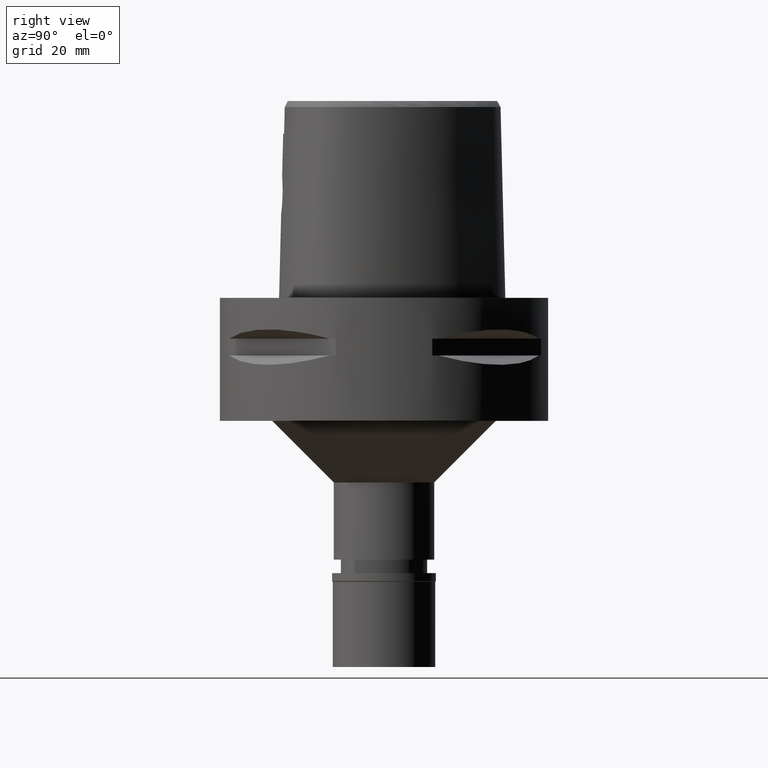
[diagram: clean part render]
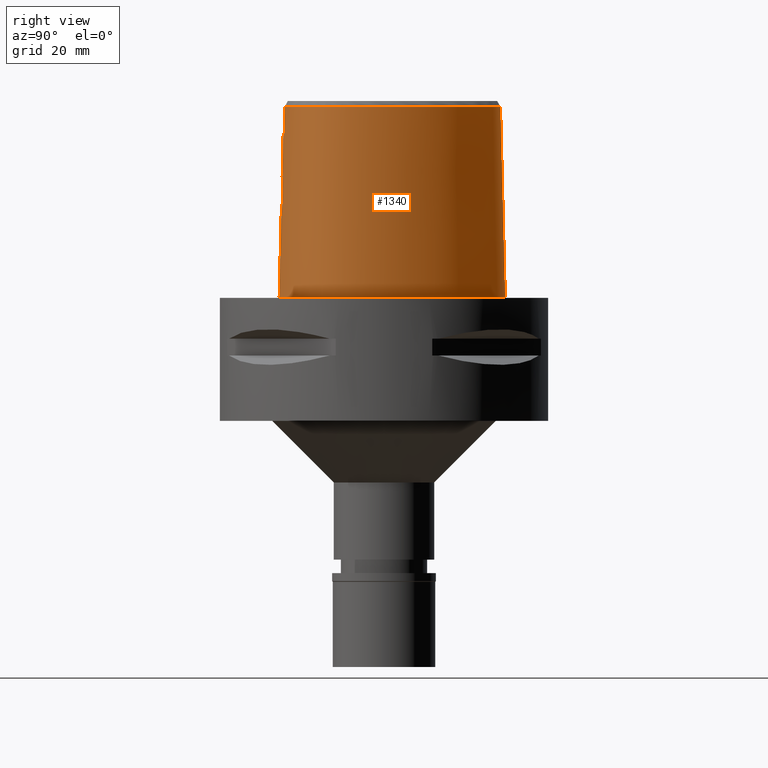
[diagram: same view with one face highlighted and labeled with its STEP entity id]
A machine part, right view. The second image highlights one B-rep face of the part: STEP entity #1340.
In plain terms, the highlighted face is a freeform B-spline surface patch.
Its self-contained STEP definition (entity closure, byte-faithful):
#16 = FACE_OUTER_BOUND ( 'NONE', #2565, .T. ) ;
#29 = CARTESIAN_POINT ( 'NONE',  ( -4.851582298131758220E-09, -24.66214466420117191, 36.51666702991057889 ) ) ;
#63 = CARTESIAN_POINT ( 'NONE',  ( 6.114741924158000330, 27.99897533430999985, 15.19676984310000023 ) ) ;
#77 = CARTESIAN_POINT ( 'NONE',  ( 4.148743480276000060E-11, 29.57499999998999840, 1.087648489790999820E-13 ) ) ;
#89 = CARTESIAN_POINT ( 'NONE',  ( -0.8826521035651000435, 29.16640542087000298, 15.19676984310000023 ) ) ;
#95 = CARTESIAN_POINT ( 'NONE',  ( 17.98126123895999839, -20.40884543399999984, 47.45113848967000081 ) ) ;
#114 = CARTESIAN_POINT ( 'NONE',  ( -0.8299363417081999650, 28.36186523049999764, 47.45113848967000081 ) ) ;
#120 = CARTESIAN_POINT ( 'NONE',  ( 27.87808443107999778, -5.337383714066000095, -0.9304144801895999350 ) ) ;
#127 = CARTESIAN_POINT ( 'NONE',  ( 24.77458491199806545, -16.12173826438012370, 1.136801594915984315E-06 ) ) ;
#146 = CARTESIAN_POINT ( 'NONE',  ( 25.95531695801999916, -11.08496013584000117, 47.45113848967000081 ) ) ;
#162 = CARTESIAN_POINT ( 'NONE',  ( 17.77103258633999872, 19.53703864451999905, -0.9304144801895999350 ) ) ;
#164 = CARTESIAN_POINT ( 'NONE',  ( 23.53784508589602353, -15.81022840325140066, 46.52069747213678141 ) ) ;
#169 = CARTESIAN_POINT ( 'NONE',  ( 26.00056140855999942, -13.24168030387999906, 15.19676984310000023 ) ) ;
#188 = CARTESIAN_POINT ( 'NONE',  ( 25.65830880171000317, -14.81383149364000040, -0.9304144801895999350 ) ) ;
#208 = CARTESIAN_POINT ( 'NONE',  ( 3.606429171763808395, -24.88406245827871999, 22.22480142265830594 ) ) ;
#231 = CARTESIAN_POINT ( 'NONE',  ( 3.252660951005724055, -24.76001264346002984, 28.18163816682579892 ) ) ;
#234 = CARTESIAN_POINT ( 'NONE',  ( 1.732112786591579967, -25.02412118468006952, 20.79259001707706034 ) ) ;
#256 = CARTESIAN_POINT ( 'NONE',  ( 1.672780685871034567, -25.02682213713908510, 20.76857498625487963 ) ) ;
#277 = CARTESIAN_POINT ( 'NONE',  ( 4.141553595727710757, -24.81790787904299123, 23.11546483665215845 ) ) ;
#283 = B_SPLINE_CURVE_WITH_KNOTS ( 'NONE', 3,
 ( #3488, #29, #2669, #3088 ),
 .UNSPECIFIED., .F., .F.,
 ( 4, 4 ),
 ( 0.0000000000000000000, 1.000000000000000000 ),
 .UNSPECIFIED. ) ;
#302 = CARTESIAN_POINT ( 'NONE',  ( 0.5741109003794259147, -25.06046598330699027, 20.47661985235022541 ) ) ;
#317 = CARTESIAN_POINT ( 'NONE',  ( 1.779627886570329887, -24.81238721778815659, 29.18772178098384273 ) ) ;
#339 = CARTESIAN_POINT ( 'NONE',  ( 4.549979298456326759, -24.73407938846012755, 24.96161245962010611 ) ) ;
#353 = ORIENTED_EDGE ( 'NONE', *, *, #1861, .T. ) ;
#402 = EDGE_CURVE ( 'NONE', #633, #1144, #3542, .T. ) ;
#413 = CARTESIAN_POINT ( 'NONE',  ( -0.8532294277657999082, -25.59082453100999999, -0.9304144801895999350 ) ) ;
#432 = CARTESIAN_POINT ( 'NONE',  ( 12.70057963536000045, 23.45048169686999984, 31.32395416638000185 ) ) ;
#461 = CARTESIAN_POINT ( 'NONE',  ( -0.5537150989762000819, 28.37988172796000086, 47.45113848967000081 ) ) ;
#466 = LINE ( 'NONE', #4011, #754 ) ;
#470 = CARTESIAN_POINT ( 'NONE',  ( 27.30517726736999862, -8.703986977869002217, 15.19676984310000023 ) ) ;
#477 = CARTESIAN_POINT ( 'NONE',  ( 6.262496933739964078, 28.35083005180685944, 1.136801594915984315E-06 ) ) ;
#487 = CARTESIAN_POINT ( 'NONE',  ( -0.9090099844935999318, 29.56867551604999989, -0.9304144801895999350 ) ) ;
#493 = CARTESIAN_POINT ( 'NONE',  ( 22.86810881857999789, -17.21714036287000127, 31.32395416638000185 ) ) ;
#520 = CARTESIAN_POINT ( 'NONE',  ( 27.16099298841000120, -1.823107492092000070, 15.19676984310000023 ) ) ;
#540 = CARTESIAN_POINT ( 'NONE',  ( 5.801139431382999589, 27.25218159234999860, 47.45113848967000081 ) ) ;
#542 = CARTESIAN_POINT ( 'NONE',  ( 24.33934953590221895, -14.68006085516544346, 46.52069803563268380 ) ) ;
#548 = CARTESIAN_POINT ( 'NONE',  ( 25.26074793472000124, -12.91722051518000036, 47.45113848967000081 ) ) ;
#574 = CARTESIAN_POINT ( 'NONE',  ( 11.64093423969000085, -23.76831843667000044, 15.19676984310000023 ) ) ;
#587 = CARTESIAN_POINT ( 'NONE',  ( 4.437987378315741971, -24.71842636459946974, 26.01433587875823150 ) ) ;
#590 = CARTESIAN_POINT ( 'NONE',  ( 1.717599865389070501, -25.02478947459730207, 20.78664336873108809 ) ) ;
#592 = EDGE_CURVE ( 'NONE', #2597, #1027, #466, .T. ) ;
#611 = CARTESIAN_POINT ( 'NONE',  ( 2.284825071839918120, -24.79755434855746188, 28.93755567619669833 ) ) ;
#633 = VERTEX_POINT ( 'NONE', #1723 ) ;
#638 = CARTESIAN_POINT ( 'NONE',  ( 1.986969619769309636, -24.80670454267275815, 29.09445024139903779 ) ) ;
#711 = CARTESIAN_POINT ( 'NONE',  ( 4.325577296999666643, -24.79069917426005887, 23.55238152010286257 ) ) ;
#754 = VECTOR ( 'NONE', #2459, 1000.000000000000000 ) ;
#805 = EDGE_CURVE ( 'NONE', #4263, #3664, #3974, .T. ) ;
#854 = CARTESIAN_POINT ( 'NONE',  ( 2.373865160391999574, -25.21827242840999972, 15.19676984310000023 ) ) ;
#860 = CARTESIAN_POINT ( 'NONE',  ( 27.53737509044531961, -1.765625004300504841, 1.136801594915984315E-06 ) ) ;
#877 = CARTESIAN_POINT ( 'NONE',  ( -0.5711750994366999734, 28.78275050240999988, 31.32395416638000185 ) ) ;
#885 = CARTESIAN_POINT ( 'NONE',  ( -0.8391799841011999828, -24.78463148750999778, 31.32395416638000185 ) ) ;
#909 = CARTESIAN_POINT ( 'NONE',  ( 26.50159628388000144, -8.602222731918999443, 47.45113848967000081 ) ) ;
#928 = CARTESIAN_POINT ( 'NONE',  ( 20.76159157987651938, 13.99289103072043972, 46.52070817855894802 ) ) ;
#932 = CARTESIAN_POINT ( 'NONE',  ( 15.01246784618999897, -22.23414198428000077, 31.32395416638000185 ) ) ;
#939 = CARTESIAN_POINT ( 'NONE',  ( 22.33885463296345364, 12.89734373572938075, 1.136801594915984315E-06 ) ) ;
#957 = CARTESIAN_POINT ( 'NONE',  ( 26.90338677561999958, -8.653104854893999942, 31.32395416638000185 ) ) ;
#980 = CARTESIAN_POINT ( 'NONE',  ( 3.317903692992027587, -24.91347842919924460, 21.88291014845663796 ) ) ;
#982 = CARTESIAN_POINT ( 'NONE',  ( 26.01411826738999977, 1.699187959068999998, 31.32395416638000185 ) ) ;
#997 = CARTESIAN_POINT ( 'NONE',  ( 2.087632527504702740, -24.80370565429717544, 29.04349576580940351 ) ) ;
#1022 = CARTESIAN_POINT ( 'NONE',  ( 26.56868348264749358, -7.988862950300611665, 46.52070085311219572 ) ) ;
#1027 = VERTEX_POINT ( 'NONE', #77 ) ;
#1050 = CARTESIAN_POINT ( 'NONE',  ( 3.937353243848378259, -24.84519667286562949, 22.71482954510200969 ) ) ;
#1095 = CARTESIAN_POINT ( 'NONE',  ( 4.537017841947839081, -24.74324082396890390, 24.64916680772596536 ) ) ;
#1108 = CARTESIAN_POINT ( 'NONE',  ( 4.402195190950401127, -24.71810392633526732, 26.16020714300089267 ) ) ;
#1144 = VERTEX_POINT ( 'NONE', #2382 ) ;
#1200 = CARTESIAN_POINT ( 'NONE',  ( -0.8562942226367000753, 28.76413532568000164, 31.32395416638000185 ) ) ;
#1215 = CARTESIAN_POINT ( 'NONE',  ( 23.43253026700000774, -17.76420408171494003, 1.136801594915984315E-06 ) ) ;
#1227 = CARTESIAN_POINT ( 'NONE',  ( 0.7484115207777000123, 29.63215901925000395, -0.9304144801895999350 ) ) ;
#1232 = CARTESIAN_POINT ( 'NONE',  ( 22.57751558706999973, -16.93548378452999970, 47.45113848967000081 ) ) ;
#1240 = CARTESIAN_POINT ( 'NONE',  ( 27.85475986894308420, -5.337968750714637167, 1.136801594915984315E-06 ) ) ;
#1245 = VERTEX_POINT ( 'NONE', #4318 ) ;
#1266 = CARTESIAN_POINT ( 'NONE',  ( 2.354169166424999737, -24.81494119805000054, 31.32395416638000185 ) ) ;
#1287 = CARTESIAN_POINT ( 'NONE',  ( 8.683908161026000272, 25.77663442005000149, 47.45113848967000081 ) ) ;
#1295 = CARTESIAN_POINT ( 'NONE',  ( 26.73375370593999989, -11.30662581556999946, 15.19676984310000023 ) ) ;
#1310 = CARTESIAN_POINT ( 'NONE',  ( 9.316733117310999290, 26.81182150647000029, -0.9304144801895999350 ) ) ;
#1312 = CARTESIAN_POINT ( 'NONE',  ( 25.61240997289991483, -12.23358473966909266, 46.52069916262448857 ) ) ;
#1316 = CARTESIAN_POINT ( 'NONE',  ( 24.79336081455999974, -16.13554022456000325, -0.9304144801895999350 ) ) ;
#1323 = CARTESIAN_POINT ( 'NONE',  ( 4.148743480276000060E-11, 29.57499999998999840, 1.087648489790999820E-13 ) ) ;
#1335 = CARTESIAN_POINT ( 'NONE',  ( 17.84219066873810888, -20.48406917474678579, 46.52069465465724818 ) ) ;
#1340 = ADVANCED_FACE ( 'NONE', ( #16 ), #1942, .T. ) ;
#1341 = CARTESIAN_POINT ( 'NONE',  ( 23.15870205008999960, -17.49879694120999929, 15.19676984310000023 ) ) ;
#1361 = CARTESIAN_POINT ( 'NONE',  ( 3.115833847005023749, -24.76582665838805752, 28.31908668410563479 ) ) ;
#1369 = CARTESIAN_POINT ( 'NONE',  ( 25.23075706189999678, 6.836210430599999555, -0.9304144801895999350 ) ) ;
#1383 = CARTESIAN_POINT ( 'NONE',  ( 4.115420520910589630, -24.72394829500681368, 26.95489229166220824 ) ) ;
#1384 = LINE ( 'NONE', #2151, #2418 ) ;
#1386 = CARTESIAN_POINT ( 'NONE',  ( 2.955264688608143953, -24.94567926532403490, 21.53931554468375964 ) ) ;
#1401 = CARTESIAN_POINT ( 'NONE',  ( 0.5545157691444414505, -24.83629963747999625, 29.55000000000000071 ) ) ;
#1405 = CARTESIAN_POINT ( 'NONE',  ( 3.156365463052500431, -24.92830912253881692, 21.72269515073470814 ) ) ;
#1424 = VERTEX_POINT ( 'NONE', #3982 ) ;
#1428 = CARTESIAN_POINT ( 'NONE',  ( 3.739368471919710224, -24.86915408846631337, 22.40675187304717753 ) ) ;
#1495 = CARTESIAN_POINT ( 'NONE',  ( 4.301663164393235483, -24.71910450366888412, 26.48607042045131621 ) ) ;
#1623 = CARTESIAN_POINT ( 'NONE',  ( 0.7047156113220000018, 28.82388505163000048, 31.32395416638000185 ) ) ;
#1644 = CARTESIAN_POINT ( 'NONE',  ( 4.602925666818999950, -24.35121855888000297, 40.00000005214999987 ) ) ;
#1654 = CARTESIAN_POINT ( 'NONE',  ( 24.14246365437000108, -15.65707285624999834, 31.32395416638000185 ) ) ;
#1659 = CARTESIAN_POINT ( 'NONE',  ( 15.29776365250764947, -22.96525387971491838, 1.136801594915984315E-06 ) ) ;
#1679 = CARTESIAN_POINT ( 'NONE',  ( 27.47379251467999950, -5.347524336919000199, 15.19676984310000023 ) ) ;
#1705 = CARTESIAN_POINT ( 'NONE',  ( 6.695047936515000409, -25.26858194629999943, -0.9304144801895999350 ) ) ;
#1720 = CARTESIAN_POINT ( 'NONE',  ( 8.894849813120998760, 26.12169678218999991, 31.32395416638000185 ) ) ;
#1722 = CARTESIAN_POINT ( 'NONE',  ( 21.61408639850731106, -17.89738970854454436, 46.52069634514494822 ) ) ;
#1723 = CARTESIAN_POINT ( 'NONE',  ( 4.602925666818999950, -24.35121855888000297, 40.00000005214999987 ) ) ;
#1726 = CARTESIAN_POINT ( 'NONE',  ( 18.17462485397000194, -20.76404277833000123, 31.32395416638000185 ) ) ;
#1741 = CARTESIAN_POINT ( 'NONE',  ( 3.996558060057624484, -24.72854169055285922, 27.19514510551929121 ) ) ;
#1749 = CARTESIAN_POINT ( 'NONE',  ( 11.74634101485999871, -24.15815461101999873, -0.9304144801895999350 ) ) ;
#1764 = CARTESIAN_POINT ( 'NONE',  ( 3.756465253610790089, -24.73852494831077564, 27.57169756947410733 ) ) ;
#1767 = CARTESIAN_POINT ( 'NONE',  ( 3.180359783745149826, -24.92613363770006885, 21.74608895217518167 ) ) ;
#1788 = CARTESIAN_POINT ( 'NONE',  ( 3.237005511786301248, -24.76067832112078904, 28.19756469887088812 ) ) ;
#1791 = CARTESIAN_POINT ( 'NONE',  ( 3.560464869665263432, -24.88898092548868490, 22.16607190872595368 ) ) ;
#1809 = CARTESIAN_POINT ( 'NONE',  ( 1.726554843534073402, -25.02437791916835508, 20.79030502623868060 ) ) ;
#1833 = CARTESIAN_POINT ( 'NONE',  ( 4.172398775490960610, -24.81348664747167376, 23.18477895933824939 ) ) ;
#1860 = CARTESIAN_POINT ( 'NONE',  ( 1.704163054239870245, -25.02540437729527767, 20.78117410888051708 ) ) ;
#1861 = EDGE_CURVE ( 'NONE', #2597, #1245, #3878, .T. ) ;
#1942 = B_SPLINE_SURFACE_WITH_KNOTS ( 'NONE', 3, 3, ( 
 ( #413, #4290, #885, #3255 ),
 ( #3580, #3278, #4035, #4839 ),
 ( #4819, #854, #1266, #4375 ),
 ( #1705, #2439, #4425, #3989 ),
 ( #1749, #574, #3301, #4797 ),
 ( #2462, #2812, #932, #4064 ),
 ( #4450, #2892, #1726, #95 ),
 ( #3678, #2516, #2404, #2488 ),
 ( #2843, #1341, #493, #1232 ),
 ( #1316, #2132, #1654, #2865 ),
 ( #188, #3959, #2780, #4342 ),
 ( #2052, #169, #3605, #548 ),
 ( #4765, #1295, #4404, #146 ),
 ( #2107, #470, #957, #909 ),
 ( #120, #1679, #3230, #4013 ),
 ( #2024, #520, #2077, #3656 ),
 ( #3201, #3628, #982, #4870 ),
 ( #1369, #2918, #4481, #2537 ),
 ( #4814, #2859, #3538, #4419 ),
 ( #162, #2047, #3249, #2071 ),
 ( #3923, #4312, #432, #4395 ),
 ( #1310, #3949, #1720, #1287 ),
 ( #4030, #63, #2835, #540 ),
 ( #2371, #4699, #2099, #3649 ),
 ( #1227, #3623, #1623, #3171 ),
 ( #2432, #4728, #877, #461 ),
 ( #487, #89, #1200, #114 ) ),
 .UNSPECIFIED., .F., .F., .F.,
 ( 4, 1, 1, 1, 1, 1, 1, 1, 1, 1, 1, 1, 1, 1, 1, 1, 1, 1, 1, 1, 1, 1, 1, 1, 4 ),
 ( 4, 4 ),
 ( -0.008851417483077999790, 0.0000000000000000000, 0.08333333333347001104, 0.1250000000001000033, 0.1666666666668000230, 0.2083333333334000115, 0.2500000000000000000, 0.2916666666666999919, 0.3125000000000000000, 0.3333333333333000081, 0.3541666666666999919, 0.3750000000000000000, 0.4166666666666000163, 0.4583333333332000326, 0.4999999999998999689, 0.5416666666666000163, 0.5833333333331000015, 0.6666666666664999852, 0.7499999999997000177, 0.8333333333329999704, 0.8749999999995999866, 0.9166666666663000340, 0.9583333333329000503, 1.000000000000000000, 1.012009199036000062 ),
 ( 5.151892881055999955E-09, 0.9999997372536000295 ),
 .UNSPECIFIED. ) ;
#2024 = CARTESIAN_POINT ( 'NONE',  ( 27.56041892249000114, -1.762105663750000106, -0.9304144801895999350 ) ) ;
#2035 = CARTESIAN_POINT ( 'NONE',  ( 11.74025984732394079, -24.13566403502034774, 1.136801594915984315E-06 ) ) ;
#2042 = CARTESIAN_POINT ( 'NONE',  ( 4.516620281278921567, -24.24973700794193476, 44.34712678184333612 ) ) ;
#2047 = CARTESIAN_POINT ( 'NONE',  ( 17.45811262586000012, 19.27961880606999756, 15.19676984310000023 ) ) ;
#2052 = CARTESIAN_POINT ( 'NONE',  ( 26.37046814548000029, -13.40391019822999930, -0.9304144801895999350 ) ) ;
#2071 = CARTESIAN_POINT ( 'NONE',  ( 16.83227270491000027, 18.76477912915999724, 47.45113848967000081 ) ) ;
#2077 = CARTESIAN_POINT ( 'NONE',  ( 26.76156705432000038, -1.884109320434000034, 31.32395416638000185 ) ) ;
#2083 = CARTESIAN_POINT ( 'NONE',  ( 18.55019647719618447, -21.45394528746165719, 1.136801594915984315E-06 ) ) ;
#2099 = CARTESIAN_POINT ( 'NONE',  ( 2.979937750099999505, 28.57037856103999829, 31.32395416638000185 ) ) ;
#2103 = CARTESIAN_POINT ( 'NONE',  ( 3.083106517893464016, -24.50056604487895839, 40.00000010051920896 ) ) ;
#2107 = CARTESIAN_POINT ( 'NONE',  ( 27.70696775911000387, -8.754869100844999252, -0.9304144801895999350 ) ) ;
#2128 = EDGE_CURVE ( 'NONE', #633, #1245, #4986, .T. ) ;
#2132 = CARTESIAN_POINT ( 'NONE',  ( 24.46791223446000174, -15.89630654040999680, 15.19676984310000023 ) ) ;
#2150 = CARTESIAN_POINT ( 'NONE',  ( 1.883305297015233082, -24.80958828430693330, 29.14211520707036485 ) ) ;
#2151 = CARTESIAN_POINT ( 'NONE',  ( -2.263615543289000344E-12, -25.06378435148999984, 20.44999999999999929 ) ) ;
#2152 = CARTESIAN_POINT ( 'NONE',  ( 8.153873202539777765, -23.84765792154228592, 46.52069127368184809 ) ) ;
#2153 = CARTESIAN_POINT ( 'NONE',  ( 3.196341748950022321, -24.92467674393279253, 21.76178677583779475 ) ) ;
#2174 = CARTESIAN_POINT ( 'NONE',  ( 4.255303340876160689, -24.72011691775877296, 26.61166571686794313 ) ) ;
#2177 = CARTESIAN_POINT ( 'NONE',  ( 1.157035249422946999, -25.04636291852922980, 20.59695966232714426 ) ) ;
#2196 = CARTESIAN_POINT ( 'NONE',  ( 4.220110851308596089, -24.72101730040711587, 26.70095761995008843 ) ) ;
#2220 = CARTESIAN_POINT ( 'NONE',  ( 1.952635857166500122, -25.01389984458332449, 20.88358337727339986 ) ) ;
#2269 = CARTESIAN_POINT ( 'NONE',  ( 4.412773899541610589, -24.77516587915418711, 23.85162301166201360 ) ) ;
#2371 = CARTESIAN_POINT ( 'NONE',  ( 3.154109046522999726, 29.36302093383000411, -0.9304144801895999350 ) ) ;
#2382 = CARTESIAN_POINT ( 'NONE',  ( -1.451045074373000022E-08, -24.57504746727000011, 40.00000005214000254 ) ) ;
#2404 = CARTESIAN_POINT ( 'NONE',  ( 20.94550185089999772, -18.97246394829999971, 31.32395416638000185 ) ) ;
#2413 = CARTESIAN_POINT ( 'NONE',  ( 26.77222811519801837, 1.900468742694818802, 1.136801594915984315E-06 ) ) ;
#2418 = VECTOR ( 'NONE', #2511, 1000.000000000000000 ) ;
#2432 = CARTESIAN_POINT ( 'NONE',  ( -0.6060951003576000584, 29.58848805132999971, -0.9304144801895999350 ) ) ;
#2439 = CARTESIAN_POINT ( 'NONE',  ( 6.639625076557000405, -24.86795321054000141, 15.19676984310000023 ) ) ;
#2459 = DIRECTION ( 'NONE',  ( 1.152952324191030062E-12, 0.02499051293969065113, -0.9996876883622259902 ) ) ;
#2462 = CARTESIAN_POINT ( 'NONE',  ( 15.30623779602999868, -22.98697010194999990, -0.9304144801895999350 ) ) ;
#2484 = CARTESIAN_POINT ( 'NONE',  ( 24.69258566271340882, -14.08975149522274783, 46.52069831738064920 ) ) ;
#2488 = CARTESIAN_POINT ( 'NONE',  ( 20.70054131009000287, -18.64994422675999886, 47.45113848967000081 ) ) ;
#2511 = DIRECTION ( 'NONE',  ( -7.796119275332742984E-13, -0.02499051295403921166, -0.9996876883618673881 ) ) ;
#2512 = CARTESIAN_POINT ( 'NONE',  ( 1.375467128704464859, 28.41206022877211979, 46.52071663099749799 ) ) ;
#2516 = CARTESIAN_POINT ( 'NONE',  ( 21.19046239172000057, -19.29498366984000057, 15.19676984310000023 ) ) ;
#2530 = CARTESIAN_POINT ( 'NONE',  ( 4.544345534604060433, -24.73984392723427916, 24.75509518056023950 ) ) ;
#2537 = CARTESIAN_POINT ( 'NONE',  ( 24.10679983589999864, 6.379205539419000814, 47.45113848967000081 ) ) ;
#2550 = CARTESIAN_POINT ( 'NONE',  ( 2.410767390560845769, -24.79324877274626004, 28.86155595108842320 ) ) ;
#2554 = CARTESIAN_POINT ( 'NONE',  ( 1.483723097888822950, -25.03485232889443068, 20.69751684277670734 ) ) ;
#2565 = EDGE_LOOP ( 'NONE', ( #3263, #353, #3104, #2785, #3353, #2723, #3988, #4551 ) ) ;
#2573 = CARTESIAN_POINT ( 'NONE',  ( 4.547962263617892908, -24.73685171198799182, 24.85950514487635488 ) ) ;
#2597 = VERTEX_POINT ( 'NONE', #3668 ) ;
#2601 = CARTESIAN_POINT ( 'NONE',  ( 4.094115463335095129, -24.82458451489376472, 23.01236396660571870 ) ) ;
#2642 = CARTESIAN_POINT ( 'NONE',  ( 4.517116520646564659, -24.75057419275596615, 24.43553773667434825 ) ) ;
#2661 = CARTESIAN_POINT ( 'NONE',  ( 4.337077477086218380, -24.71860659089786338, 26.37767366826318138 ) ) ;
#2669 = CARTESIAN_POINT ( 'NONE',  ( -4.860377536725454092E-09, -24.74922215084313848, 33.03333351495532355 ) ) ;
#2723 = ORIENTED_EDGE ( 'NONE', *, *, #805, .F. ) ;
#2761 = CARTESIAN_POINT ( 'NONE',  ( 25.20914247345218229, 6.827421864262309903, 1.136801594915984315E-06 ) ) ;
#2780 = CARTESIAN_POINT ( 'NONE',  ( 24.95856549375000100, -14.40983450592999837, 31.32395416638000185 ) ) ;
#2785 = ORIENTED_EDGE ( 'NONE', *, *, #402, .T. ) ;
#2788 = CARTESIAN_POINT ( 'NONE',  ( 21.42129057636989842, -19.59889646164317156, 1.136801594915984315E-06 ) ) ;
#2812 = CARTESIAN_POINT ( 'NONE',  ( 15.15935282110999793, -22.61055604312000256, 15.19676984310000023 ) ) ;
#2835 = CARTESIAN_POINT ( 'NONE',  ( 5.957940677769999915, 27.62557846333000100, 31.32395416638000185 ) ) ;
#2838 = CARTESIAN_POINT ( 'NONE',  ( 1.541632268877536127, -24.57506718866758888, 40.00000010051920896 ) ) ;
#2843 = CARTESIAN_POINT ( 'NONE',  ( 23.44929528161000221, -17.78045351954999731, -0.9304144801895999350 ) ) ;
#2859 = CARTESIAN_POINT ( 'NONE',  ( 22.00846692983999731, 12.70659196765999788, 15.19676984310000023 ) ) ;
#2865 = CARTESIAN_POINT ( 'NONE',  ( 23.81701507426999953, -15.41783917208999988, 47.45113848967000081 ) ) ;
#2872 = CARTESIAN_POINT ( 'NONE',  ( 26.34912734612152008, -13.39455076981272263, 1.136801594915984315E-06 ) ) ;
#2892 = CARTESIAN_POINT ( 'NONE',  ( 18.36798846899000281, -21.11924012264999817, 15.19676984310000023 ) ) ;
#2911 = CARTESIAN_POINT ( 'NONE',  ( 3.005270379488211407, -24.77034733848115167, 28.41951852238053533 ) ) ;
#2913 = CARTESIAN_POINT ( 'NONE',  ( 20.45409312013801184, -18.82869992193688802, 46.52069578164906005 ) ) ;
#2918 = CARTESIAN_POINT ( 'NONE',  ( 24.85610465323000184, 6.683875466873000271, 15.19676984310000023 ) ) ;
#2932 = CARTESIAN_POINT ( 'NONE',  ( 2.653628212344383286, -24.78409939537364082, 28.69623435022997171 ) ) ;
#2936 = CARTESIAN_POINT ( 'NONE',  ( 3.051956606900613433, -24.93748982820226345, 21.62510482542848322 ) ) ;
#2951 = CARTESIAN_POINT ( 'NONE',  ( 2.592678685478297052, -24.78641481269938041, 28.73923899945384619 ) ) ;
#2954 = CARTESIAN_POINT ( 'NONE',  ( 24.48700992949975941, 6.834036305490694296, 46.52070592457533138 ) ) ;
#3030 = CARTESIAN_POINT ( 'NONE',  ( 3.100243586364323178, -24.93331626314396487, 21.66917441973967584 ) ) ;
#3048 = CARTESIAN_POINT ( 'NONE',  ( 2.832428424601348471, -24.77719445135581466, 28.56165880794238632 ) ) ;
#3088 = CARTESIAN_POINT ( 'NONE',  ( 1.351075727145000046E-14, -24.83629963747999980, 29.55000000000000071 ) ) ;
#3104 = ORIENTED_EDGE ( 'NONE', *, *, #2128, .F. ) ;
#3165 = CARTESIAN_POINT ( 'NONE',  ( -2.263615543289000344E-12, -25.06378435148999984, 20.44999999999999929 ) ) ;
#3171 = CARTESIAN_POINT ( 'NONE',  ( 0.6828676565940998699, 28.41974806781000140, 47.45113848967000081 ) ) ;
#3199 = CARTESIAN_POINT ( 'NONE',  ( -1.451045074373000022E-08, -24.57504746727000011, 40.00000005214000254 ) ) ;
#3201 = CARTESIAN_POINT ( 'NONE',  ( 26.79474625781999819, 1.906447387354000211, -0.9304144801895999350 ) ) ;
#3208 = CARTESIAN_POINT ( 'NONE',  ( 13.21796078667582819, 24.04386716596248164, 1.136801594915984315E-06 ) ) ;
#3223 = CARTESIAN_POINT ( 'NONE',  ( 1.351075727145000046E-14, -24.83629963747999980, 29.55000000000000071 ) ) ;
#3230 = CARTESIAN_POINT ( 'NONE',  ( 27.06950059827000032, -5.357664959772000302, 31.32395416638000185 ) ) ;
#3237 = CARTESIAN_POINT ( 'NONE',  ( 6.691850459918236460, -25.24546872176594547, 1.136801594915984315E-06 ) ) ;
#3249 = CARTESIAN_POINT ( 'NONE',  ( 17.14519266538999887, 19.02219896760999873, 31.32395416638000185 ) ) ;
#3251 = CARTESIAN_POINT ( 'NONE',  ( 5.530043876419259874, 27.35846726636752635, 46.52071494050979794 ) ) ;
#3255 = CARTESIAN_POINT ( 'NONE',  ( -0.8321552622689000200, -24.38153496576000379, 47.45113848967000081 ) ) ;
#3263 = ORIENTED_EDGE ( 'NONE', *, *, #592, .F. ) ;
#3271 = CARTESIAN_POINT ( 'NONE',  ( 1.153626000818857023, -24.82864766317860727, 29.44729853102404249 ) ) ;
#3273 = CARTESIAN_POINT ( 'NONE',  ( 16.39076485917171766, -21.20751266142985969, 46.52069409116135290 ) ) ;
#3278 = CARTESIAN_POINT ( 'NONE',  ( -0.5642169923879000182, -25.19264564226000047, 15.19676984310000023 ) ) ;
#3296 = CARTESIAN_POINT ( 'NONE',  ( 3.458990831517685383, -24.75121472495268549, 27.95724070546421913 ) ) ;
#3301 = CARTESIAN_POINT ( 'NONE',  ( 11.53552746452000122, -23.37848226232000215, 31.32395416638000185 ) ) ;
#3323 = CARTESIAN_POINT ( 'NONE',  ( 4.550159243768823636, -24.72595648767389775, 25.28426205013431627 ) ) ;
#3325 = CARTESIAN_POINT ( 'NONE',  ( -1.216549064271000200E-11, 28.41206021534999593, 46.52071719450999154 ) ) ;
#3343 = CARTESIAN_POINT ( 'NONE',  ( 2.744259390201580384, -24.78063453097690427, 28.63060330404749365 ) ) ;
#3345 = CARTESIAN_POINT ( 'NONE',  ( 13.63304938780444076, 22.11238814014077647, 46.52071155953439074 ) ) ;
#3353 = ORIENTED_EDGE ( 'NONE', *, *, #4642, .T. ) ;
#3367 = CARTESIAN_POINT ( 'NONE',  ( 2.192364263587665452, -25.00047163864961419, 21.00192190659223002 ) ) ;
#3391 = CARTESIAN_POINT ( 'NONE',  ( 4.043275511959665280, -24.83139551622598873, 22.91194186429524393 ) ) ;
#3396 = EDGE_CURVE ( 'NONE', #1424, #1027, #4704, .T. ) ;
#3414 = CARTESIAN_POINT ( 'NONE',  ( 2.568983978598938123, -24.97528315391446796, 21.24168007029566851 ) ) ;
#3488 = CARTESIAN_POINT ( 'NONE',  ( -1.451045074373000022E-08, -24.57504746727000011, 40.00000005214000254 ) ) ;
#3538 = CARTESIAN_POINT ( 'NONE',  ( 21.65785138191999692, 12.50416150476999988, 31.32395416638000185 ) ) ;
#3542 = B_SPLINE_CURVE_WITH_KNOTS ( 'NONE', 3,
 ( #3575, #2103, #2838, #3199 ),
 .UNSPECIFIED., .F., .F.,
 ( 4, 4 ),
 ( 0.0000000000000000000, 1.000000000000000000 ),
 .UNSPECIFIED. ) ;
#3560 = CARTESIAN_POINT ( 'NONE',  ( 27.10051714626465014, -11.41106444531779474, 1.136801594915984315E-06 ) ) ;
#3575 = CARTESIAN_POINT ( 'NONE',  ( 4.602925666818999950, -24.35121855888000297, 40.00000005214999987 ) ) ;
#3580 = CARTESIAN_POINT ( 'NONE',  ( -0.5689009026237998867, -25.59577917792999813, -0.9304144801895999350 ) ) ;
#3605 = CARTESIAN_POINT ( 'NONE',  ( 25.63065467163999855, -13.07945040952999882, 31.32395416638000185 ) ) ;
#3612 = CARTESIAN_POINT ( 'NONE',  ( 25.63812387393340231, -14.80217772014058575, 1.136801594915984315E-06 ) ) ;
#3623 = CARTESIAN_POINT ( 'NONE',  ( 0.7265635660497999915, 29.22802203544000221, 15.19676984310000023 ) ) ;
#3628 = CARTESIAN_POINT ( 'NONE',  ( 26.40443226260000387, 1.802817673212000038, 15.19676984310000023 ) ) ;
#3649 = CARTESIAN_POINT ( 'NONE',  ( 2.892852101888000238, 28.17405737463999671, 47.45113848967000081 ) ) ;
#3656 = CARTESIAN_POINT ( 'NONE',  ( 26.36214112024000045, -1.945111148775999999, 47.45113848967000081 ) ) ;
#3664 = VERTEX_POINT ( 'NONE', #3223 ) ;
#3668 = CARTESIAN_POINT ( 'NONE',  ( -1.216549064271000200E-11, 28.41206021534999593, 46.52071719450999154 ) ) ;
#3676 = EDGE_CURVE ( 'NONE', #4263, #1424, #1384, .T. ) ;
#3678 = CARTESIAN_POINT ( 'NONE',  ( 21.43542293252999897, -19.61750339138999877, -0.9304144801895999350 ) ) ;
#3697 = CARTESIAN_POINT ( 'NONE',  ( 3.329382130118906158, -24.75674668230311326, 28.10179055163413153 ) ) ;
#3699 = CARTESIAN_POINT ( 'NONE',  ( 11.70978320535252237, -23.05272019184545229, 46.52069240067363864 ) ) ;
#3700 = CARTESIAN_POINT ( 'NONE',  ( 3.418326490945207574, -24.90370471633881166, 21.99337763265276280 ) ) ;
#3723 = CARTESIAN_POINT ( 'NONE',  ( 4.208386412724203218, -24.72133790640166850, 26.72975093107580946 ) ) ;
#3725 = CARTESIAN_POINT ( 'NONE',  ( 10.99875819582912229, 24.38035098655691257, 46.52071268652618841 ) ) ;
#3726 = CARTESIAN_POINT ( 'NONE',  ( 1.374979210368420190, -25.03889659011747426, 20.66206490747613955 ) ) ;
#3748 = CARTESIAN_POINT ( 'NONE',  ( -2.263615543289000344E-12, -25.06378435148999984, 20.44999999999999929 ) ) ;
#3770 = CARTESIAN_POINT ( 'NONE',  ( 2.890648186359149996, -24.95092863274543049, 21.48525694161337185 ) ) ;
#3799 = CARTESIAN_POINT ( 'NONE',  ( 0.2837429639710692397, -25.06378435148998918, 20.44999999999999574 ) ) ;
#3814 = CARTESIAN_POINT ( 'NONE',  ( 1.813541865606719039, -24.81148519056495516, 29.17313109452612352 ) ) ;
#3836 = CARTESIAN_POINT ( 'NONE',  ( 3.275992991610296556, -24.75902016830567476, 28.15772619068260241 ) ) ;
#3878 = B_SPLINE_CURVE_WITH_KNOTS ( 'NONE', 3,
 ( #3325, #2512, #4421, #3251, #4863, #3725, #3345, #928, #2954, #4518, #4816, #4478, #1022, #4499, #1312, #2484, #542, #164, #4896, #1722, #2913, #1335, #3273, #3699, #2152, #4836 ),
 .UNSPECIFIED., .F., .F.,
 ( 4, 2, 2, 2, 2, 2, 2, 2, 2, 2, 2, 2, 4 ),
 ( 0.0000000000000000000, 0.06250000000000004163, 0.1250000000000000833, 0.2500000000000001665, 0.5000000000000003331, 0.5625000000000003331, 0.6250000000000004441, 0.6875000000000004441, 0.7187500000000004441, 0.7500000000000004441, 0.8125000000000004441, 0.8750000000000003331, 1.000000000000000000 ),
 .UNSPECIFIED. ) ;
#3923 = CARTESIAN_POINT ( 'NONE',  ( 13.23332856298000060, 24.06149249909999810, -0.9304144801895999350 ) ) ;
#3949 = CARTESIAN_POINT ( 'NONE',  ( 9.105791465215999025, 26.46675914433000187, 15.19676984310000023 ) ) ;
#3959 = CARTESIAN_POINT ( 'NONE',  ( 25.30843714773000031, -14.61183299979000161, 15.19676984310000023 ) ) ;
#3970 = CARTESIAN_POINT ( 'NONE',  ( 9.304563391743986500, 26.79191403817701911, 1.136801594915984315E-06 ) ) ;
#3974 = B_SPLINE_CURVE_WITH_KNOTS ( 'NONE', 3,
 ( #3748, #3799, #302, #4132, #2177, #3726, #2554, #4105, #256, #1860, #590, #1809, #234, #2220, #3367, #3414, #4982, #3770, #1386, #2936, #3030, #1405, #1767, #2153, #4937, #980, #3700, #1791, #208, #4519, #1428, #4543, #1050, #3391, #2601, #277, #1833, #4586, #711, #2269, #4199, #2642, #1095, #2530, #2573, #4128, #339, #3323, #4894, #587, #1108, #2661, #1495, #2174, #4861, #2196, #4476, #3723, #1383, #1741, #1764, #4496, #4080, #3296, #4102, #3697, #3836, #231, #1788, #4216, #1361, #2911, #3048, #3343, #2932, #2951, #4913, #2550, #611, #997, #638, #2150, #3814, #317, #3271, #1401, #4516 ),
 .UNSPECIFIED., .F., .F.,
 ( 4, 2, 2, 1, 1, 1, 1, 2, 2, 2, 2, 2, 1, 1, 2, 2, 2, 2, 2, 2, 1, 2, 2, 2, 2, 1, 2, 2, 2, 2, 1, 1, 1, 2, 2, 2, 2, 2, 1, 1, 2, 2, 2, 1, 2, 2, 2, 1, 2, 2, 4 ),
 ( 0.0000000000000000000, 0.06249999999997936373, 0.09374999999996903866, 0.1093749999999639594, 0.1171874999999614475, 0.1210937499999601707, 0.1230468749999595324, 0.1240234374999592271, 0.1249999999999589217, 0.1874999999999530098, 0.2187499999999500677, 0.2343749999999485412, 0.2421874999999477640, 0.2460937499999471256, 0.2480468749999467926, 0.2499999999999464873, 0.2812499999999421574, 0.2968749999999400480, 0.3124999999999379385, 0.3437499999999336642, 0.3593749999999314437, 0.3671874999999300004, 0.3749999999999285016, 0.4374999999999157341, 0.4687499999999096278, 0.4843749999999069633, 0.4921874999999055755, 0.4999999999999042988, 0.5624999999998936406, 0.5937499999998883116, 0.6093749999998857581, 0.6171874999998844258, 0.6210937499998838707, 0.6230468749998835376, 0.6249999999998832045, 0.6874999999998880895, 0.7187499999998905320, 0.7343749999998920863, 0.7421874999998928635, 0.7460937499998934186, 0.7480468749998939737, 0.7499999999998945288, 0.7812499999999076294, 0.7968749999999140687, 0.8046874999999173994, 0.8124999999999207301, 0.8437499999999338307, 0.8593749999999403810, 0.8671874999999437117, 0.8749999999999470424, 1.000000000000000000 ),
 .UNSPECIFIED. ) ;
#3977 = CARTESIAN_POINT ( 'NONE',  ( 4.472216720976999405, -24.20009030094000124, 46.52069014668999358 ) ) ;
#3982 = CARTESIAN_POINT ( 'NONE',  ( -1.821166022130000062E-11, -25.57499999999999929, 1.152041425219000027E-13 ) ) ;
#3988 = ORIENTED_EDGE ( 'NONE', *, *, #3676, .T. ) ;
#3989 = CARTESIAN_POINT ( 'NONE',  ( 6.528779356640999509, -24.06669573901000092, 47.45113848967000081 ) ) ;
#3997 = CARTESIAN_POINT ( 'NONE',  ( 3.149084868372123758, 29.34015622206321794, 1.136801594915984315E-06 ) ) ;
#4011 = CARTESIAN_POINT ( 'NONE',  ( -1.216549064271000200E-11, 28.41206021534999593, 46.52071719450999154 ) ) ;
#4013 = CARTESIAN_POINT ( 'NONE',  ( 26.66520868187000204, -5.367805582625000405, 47.45113848967000081 ) ) ;
#4030 = CARTESIAN_POINT ( 'NONE',  ( 6.271543170545999857, 28.37237220529999959, -0.9304144801895999350 ) ) ;
#4035 = CARTESIAN_POINT ( 'NONE',  ( -0.5595330821520999587, -24.78951210658000193, 31.32395416638000185 ) ) ;
#4064 = CARTESIAN_POINT ( 'NONE',  ( 14.86558287127000000, -21.85772792543999898, 47.45113848967000081 ) ) ;
#4080 = CARTESIAN_POINT ( 'NONE',  ( 3.512978482355693544, -24.74890643940160118, 27.89278862330786879 ) ) ;
#4102 = CARTESIAN_POINT ( 'NONE',  ( 3.373359712598877458, -24.75487047605673041, 28.05365220515685820 ) ) ;
#4105 = CARTESIAN_POINT ( 'NONE',  ( 1.609901483201207739, -25.02958960435421432, 20.74402583925038002 ) ) ;
#4128 = CARTESIAN_POINT ( 'NONE',  ( 4.549574022937067141, -24.73494683104343750, 24.92875559372933836 ) ) ;
#4132 = CARTESIAN_POINT ( 'NONE',  ( 1.011135947205478391, -25.05051087875798288, 20.56129276502825221 ) ) ;
#4199 = CARTESIAN_POINT ( 'NONE',  ( 4.496850936021979273, -24.75618253903773436, 24.29074513878774511 ) ) ;
#4216 = CARTESIAN_POINT ( 'NONE',  ( 3.227783996387109777, -24.76107025147648244, 28.20686722737168850 ) ) ;
#4249 = CARTESIAN_POINT ( 'NONE',  ( 4.560197061652469408, -24.30012317751191020, 42.17356341699667155 ) ) ;
#4263 = VERTEX_POINT ( 'NONE', #3165 ) ;
#4290 = CARTESIAN_POINT ( 'NONE',  ( -0.8462047059335000565, -25.18772800925999888, 15.19676984310000023 ) ) ;
#4312 = CARTESIAN_POINT ( 'NONE',  ( 12.96695409916999964, 23.75598709799000119, 15.19676984310000023 ) ) ;
#4318 = CARTESIAN_POINT ( 'NONE',  ( 4.472216720976999405, -24.20009030094000124, 46.52069014668999358 ) ) ;
#4324 = CARTESIAN_POINT ( 'NONE',  ( 17.75297948963928363, 19.52218748184856878, 1.136801594915984315E-06 ) ) ;
#4342 = CARTESIAN_POINT ( 'NONE',  ( 24.60869383976000080, -14.20783601207999958, 47.45113848967000081 ) ) ;
#4375 = CARTESIAN_POINT ( 'NONE',  ( 2.334473172458999990, -24.41160996768000047, 47.45113848967000081 ) ) ;
#4395 = CARTESIAN_POINT ( 'NONE',  ( 12.43420517154999949, 23.14497629575999937, 47.45113848967000081 ) ) ;
#4404 = CARTESIAN_POINT ( 'NONE',  ( 26.34453533197999775, -11.19579297569999987, 31.32395416638000185 ) ) ;
#4419 = CARTESIAN_POINT ( 'NONE',  ( 21.30723583401000099, 12.30173104188000011, 47.45113848967000081 ) ) ;
#4421 = CARTESIAN_POINT ( 'NONE',  ( 2.760678900605101127, 28.19254769430456165, 46.52071606750159560 ) ) ;
#4425 = CARTESIAN_POINT ( 'NONE',  ( 6.584202216598999513, -24.46732447476999894, 31.32395416638000185 ) ) ;
#4450 = CARTESIAN_POINT ( 'NONE',  ( 18.56135208400000280, -21.47443746697999956, -0.9304144801895999350 ) ) ;
#4476 = CARTESIAN_POINT ( 'NONE',  ( 4.212885333431600543, -24.72121330192673483, 26.71877560768000137 ) ) ;
#4478 = CARTESIAN_POINT ( 'NONE',  ( 26.66096789088930308, -6.450661550929244648, 46.52070141660809099 ) ) ;
#4481 = CARTESIAN_POINT ( 'NONE',  ( 24.48145224455999980, 6.531540503146000098, 31.32395416638000185 ) ) ;
#4496 = CARTESIAN_POINT ( 'NONE',  ( 3.666127388008825427, -24.74236822830321714, 27.69981209002141043 ) ) ;
#4499 = CARTESIAN_POINT ( 'NONE',  ( 26.04423705949178114, -10.88022456237786351, 46.52069972612038384 ) ) ;
#4516 = CARTESIAN_POINT ( 'NONE',  ( 1.351075727145000046E-14, -24.83629963747999980, 29.55000000000000071 ) ) ;
#4518 = CARTESIAN_POINT ( 'NONE',  ( 26.30769162470368272, -1.593520748820498101, 46.52070310709581946 ) ) ;
#4519 = CARTESIAN_POINT ( 'NONE',  ( 3.695416430653955864, -24.87420445000563163, 22.34444809527640174 ) ) ;
#4543 = CARTESIAN_POINT ( 'NONE',  ( 3.861082105047393576, -24.85463631592572753, 22.58840412900325134 ) ) ;
#4551 = ORIENTED_EDGE ( 'NONE', *, *, #3396, .T. ) ;
#4586 = CARTESIAN_POINT ( 'NONE',  ( 4.186622009783886433, -24.81141158316092898, 23.21777758281610460 ) ) ;
#4642 = EDGE_CURVE ( 'NONE', #1144, #3664, #283, .T. ) ;
#4699 = CARTESIAN_POINT ( 'NONE',  ( 3.067023398311000015, 28.96669974743999987, 15.19676984310000023 ) ) ;
#4704 = B_SPLINE_CURVE_WITH_KNOTS ( 'NONE', 3,
 ( #4826, #4716, #3237, #2035, #1659, #2083, #2788, #1215, #127, #3612, #2872, #3560, #4804, #1240, #860, #2413, #2761, #939, #4324, #3208, #3970, #477, #3997, #4771, #1323 ),
 .UNSPECIFIED., .F., .F.,
 ( 4, 1, 1, 1, 1, 1, 1, 1, 1, 1, 1, 1, 1, 1, 1, 1, 1, 1, 1, 1, 1, 1, 4 ),
 ( 0.0000000000000000000, 0.08333333333347001104, 0.1250000000001000033, 0.1666666666668000230, 0.2083333333334000115, 0.2500000000000000000, 0.2916666666666999919, 0.3125000000000000000, 0.3333333333333000081, 0.3541666666666999919, 0.3750000000000000000, 0.4166666666666000163, 0.4583333333332000326, 0.4999999999998999689, 0.5416666666666000163, 0.5833333333331000015, 0.6666666666664999852, 0.7499999999997000177, 0.8333333333329999704, 0.8749999999995999866, 0.9166666666663000340, 0.9583333333329000503, 1.000000000000000000 ),
 .UNSPECIFIED. ) ;
#4716 = CARTESIAN_POINT ( 'NONE',  ( 2.676740183969098297, -25.57499997157842486, 1.136801594915984315E-06 ) ) ;
#4728 = CARTESIAN_POINT ( 'NONE',  ( -0.5886350998971000559, 29.18561927686999979, 15.19676984310000023 ) ) ;
#4765 = CARTESIAN_POINT ( 'NONE',  ( 27.12297207989000114, -11.41745865542999994, -0.9304144801895999350 ) ) ;
#4771 = CARTESIAN_POINT ( 'NONE',  ( 1.049694956045339245, 29.57499997157923843, 1.136801594915984315E-06 ) ) ;
#4797 = CARTESIAN_POINT ( 'NONE',  ( 11.43012068936000070, -22.98864608796000297, 47.45113848967000081 ) ) ;
#4804 = CARTESIAN_POINT ( 'NONE',  ( 27.68378751011056949, -8.751933590163561760, 1.136801594915984315E-06 ) ) ;
#4814 = CARTESIAN_POINT ( 'NONE',  ( 22.35908247775000035, 12.90902243054999943, -0.9304144801895999350 ) ) ;
#4816 = CARTESIAN_POINT ( 'NONE',  ( 26.53043812451225492, -3.252830914801648987, 46.52070254359989576 ) ) ;
#4819 = CARTESIAN_POINT ( 'NONE',  ( 2.393561154358000209, -25.62160365878000334, -0.9304144801895999350 ) ) ;
#4826 = CARTESIAN_POINT ( 'NONE',  ( -1.821166022130000062E-11, -25.57499999999999929, 1.152041425219000027E-13 ) ) ;
#4836 = CARTESIAN_POINT ( 'NONE',  ( 4.472216720976999405, -24.20009030094000124, 46.52069014668999358 ) ) ;
#4839 = CARTESIAN_POINT ( 'NONE',  ( -0.5548491719163000102, -24.38637857091000072, 47.45113848967000081 ) ) ;
#4861 = CARTESIAN_POINT ( 'NONE',  ( 4.230858595537660527, -24.72073100376796972, 26.67421065539050318 ) ) ;
#4863 = CARTESIAN_POINT ( 'NONE',  ( 6.913370730854689228, 26.74336904842843765, 46.52071437701389556 ) ) ;
#4870 = CARTESIAN_POINT ( 'NONE',  ( 25.62380427216999834, 1.595558244925999958, 47.45113848967000081 ) ) ;
#4894 = CARTESIAN_POINT ( 'NONE',  ( 4.523121810470202675, -24.72136632330987993, 25.57645994462144046 ) ) ;
#4896 = CARTESIAN_POINT ( 'NONE',  ( 23.08984995680114238, -16.35075897049313909, 46.52069719038880180 ) ) ;
#4913 = CARTESIAN_POINT ( 'NONE',  ( 2.560989721135741526, -24.78761092133468580, 28.76100236096186080 ) ) ;
#4937 = CARTESIAN_POINT ( 'NONE',  ( 3.205701519811188227, -24.92381821717547297, 21.77105828208814842 ) ) ;
#4982 = CARTESIAN_POINT ( 'NONE',  ( 2.697261088284170327, -24.96604596303031443, 21.33198344650112688 ) ) ;
#4986 = B_SPLINE_CURVE_WITH_KNOTS ( 'NONE', 3,
 ( #1644, #4249, #2042, #3977 ),
 .UNSPECIFIED., .F., .F.,
 ( 4, 4 ),
 ( 0.0000000000000000000, 1.000000000000000000 ),
 .UNSPECIFIED. ) ;